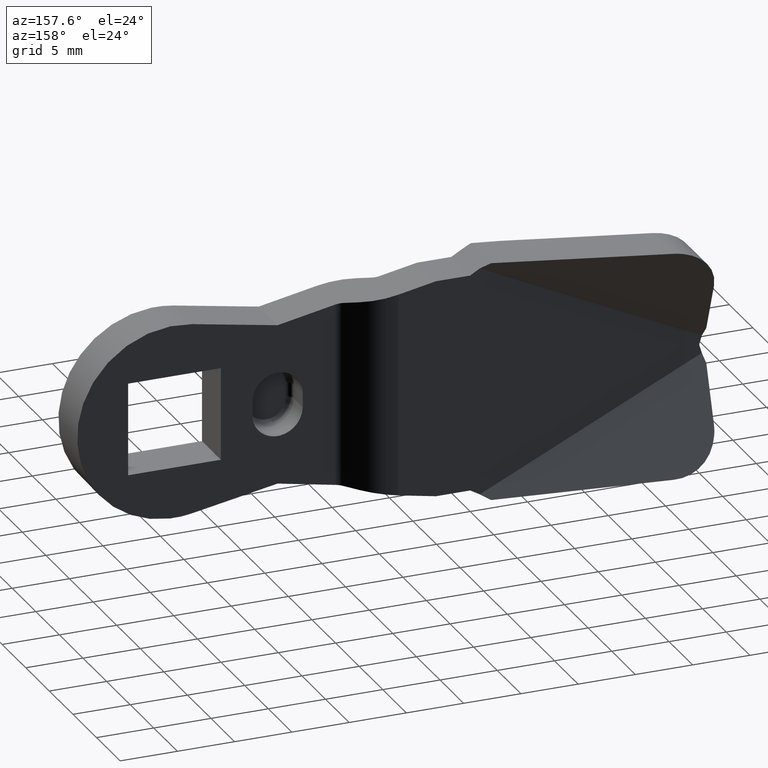
[diagram: clean part render]
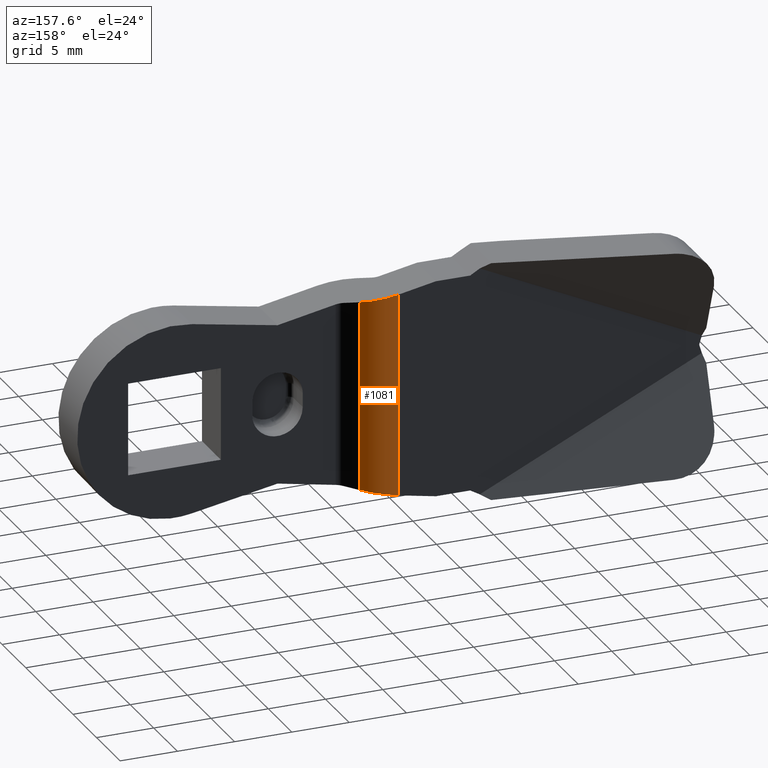
[diagram: same view with one face highlighted and labeled with its STEP entity id]
A machine part, auxiliary view. The second image highlights one B-rep face of the part: STEP entity #1081.
In plain terms, the highlighted face is a freeform B-spline surface patch.
Its self-contained STEP definition (entity closure, byte-faithful):
#1021=CARTESIAN_POINT('',(-15.614957937899851,-1.086959215737935,9.314213277623868));
#1022=CARTESIAN_POINT('',(-15.614957937899851,-1.086959215737935,-9.325301626763874));
#1023=CARTESIAN_POINT('',(-17.051555881014519,0.055762386026602,9.314213277623868));
#1024=CARTESIAN_POINT('',(-17.051555881014519,0.055762386026602,-9.325301626763874));
#1025=CARTESIAN_POINT('',(-18.886284571507868,-0.002520901296358,9.314213277623866));
#1026=CARTESIAN_POINT('',(-18.886284571507868,-0.002520901296358,-9.325301626763874));
#1034=(BOUNDED_SURFACE()B_SPLINE_SURFACE(1,2,((#1021,#1023,#1025),(#1022,#1024,#1026)),.UNSPECIFIED.,.F.,.F.,.U.)B_SPLINE_SURFACE_WITH_KNOTS((2,2),(3,3),(0.0,18.639514904387742),(0.0,3.555278123452041),.UNSPECIFIED.)GEOMETRIC_REPRESENTATION_ITEM()RATIONAL_B_SPLINE_SURFACE(((1.0,0.934839824910730,0.991717592288532),(1.0,0.934839824910730,0.991717592288532)))REPRESENTATION_ITEM('')SURFACE());
#1035=CARTESIAN_POINT('',(-15.718456005328051,-1.006822449763190,8.292011020530540));
#1036=VERTEX_POINT('',#1035);
#1037=CARTESIAN_POINT('',(-18.727531121087949,0.0,8.870679312022730));
#1038=VERTEX_POINT('',#1037);
#1039=CARTESIAN_POINT('',(-15.718456005328051,-1.006822449763190,8.292011020530540));
#1040=CARTESIAN_POINT('',(-17.054554523577902,0.0,8.548953043270839));
#1041=CARTESIAN_POINT('',(-18.727531121087949,0.0,8.870679312022730));
#1049=(BOUNDED_CURVE()B_SPLINE_CURVE(2,(#1039,#1040,#1041),.UNSPECIFIED.,.F.,.U.)CURVE()GEOMETRIC_REPRESENTATION_ITEM()QUASI_UNIFORM_CURVE()RATIONAL_B_SPLINE_CURVE((1.0,0.948323655206216,1.0))REPRESENTATION_ITEM(''));
#1050=EDGE_CURVE('',#1036,#1038,#1049,.T.);
#1051=ORIENTED_EDGE('',*,*,#1050,.F.);
#1052=CARTESIAN_POINT('',(-15.718456005327900,-1.006822449763466,-8.292011020530429));
#1053=VERTEX_POINT('',#1052);
#1054=CARTESIAN_POINT('',(-15.718456005327900,-1.006822449763466,-8.292011020530429));
#1055=CARTESIAN_POINT('',(-15.718456005328051,-1.006822449763190,8.292011020530540));
#1056=QUASI_UNIFORM_CURVE('',1,(#1054,#1055),.UNSPECIFIED.,.F.,.U.);
#1057=EDGE_CURVE('',#1053,#1036,#1056,.T.);
#1058=ORIENTED_EDGE('',*,*,#1057,.F.);
#1059=CARTESIAN_POINT('',(-18.727531121087949,0.0,-8.870679312022711));
#1060=VERTEX_POINT('',#1059);
#1061=CARTESIAN_POINT('',(-18.727531121087949,0.0,-8.870679312022711));
#1062=CARTESIAN_POINT('',(-17.054554523577647,0.0,-8.548953043270750));
#1063=CARTESIAN_POINT('',(-15.718456005327900,-1.006822449763466,-8.292011020530429));
#1071=(BOUNDED_CURVE()B_SPLINE_CURVE(2,(#1061,#1062,#1063),.UNSPECIFIED.,.F.,.U.)CURVE()GEOMETRIC_REPRESENTATION_ITEM()QUASI_UNIFORM_CURVE()RATIONAL_B_SPLINE_CURVE((1.0,0.948323655206205,1.0))REPRESENTATION_ITEM(''));
#1072=EDGE_CURVE('',#1060,#1053,#1071,.T.);
#1073=ORIENTED_EDGE('',*,*,#1072,.F.);
#1074=CARTESIAN_POINT('',(-18.727531121087949,0.0,8.870679312022730));
#1075=CARTESIAN_POINT('',(-18.727531121087949,0.0,-8.870679312022711));
#1076=QUASI_UNIFORM_CURVE('',1,(#1074,#1075),.UNSPECIFIED.,.F.,.U.);
#1077=EDGE_CURVE('',#1038,#1060,#1076,.T.);
#1078=ORIENTED_EDGE('',*,*,#1077,.F.);
#1079=EDGE_LOOP('',(#1051,#1058,#1073,#1078));
#1080=FACE_OUTER_BOUND('',#1079,.T.);
#1081=ADVANCED_FACE('',(#1080),#1034,.T.);